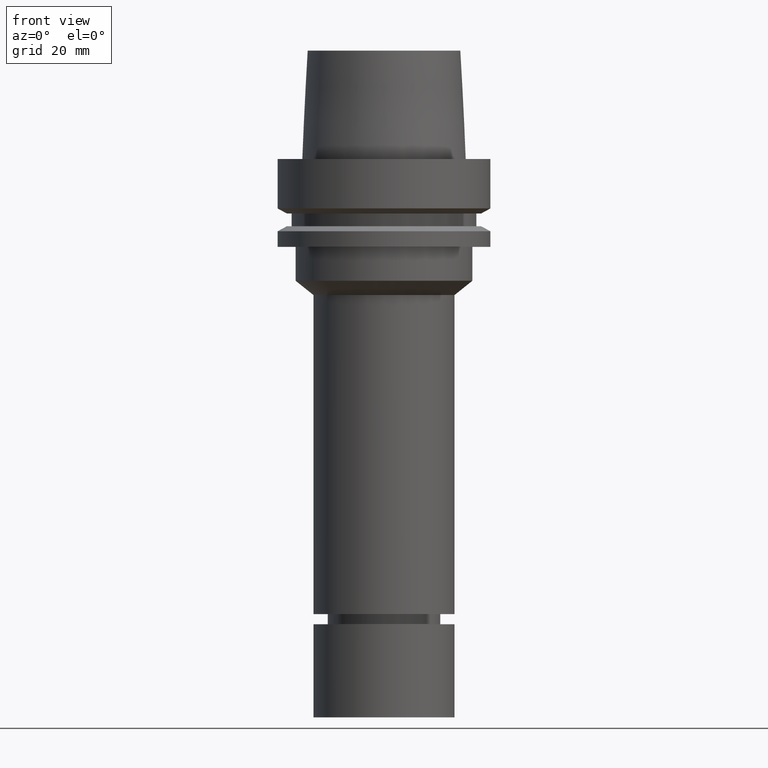
[diagram: clean part render]
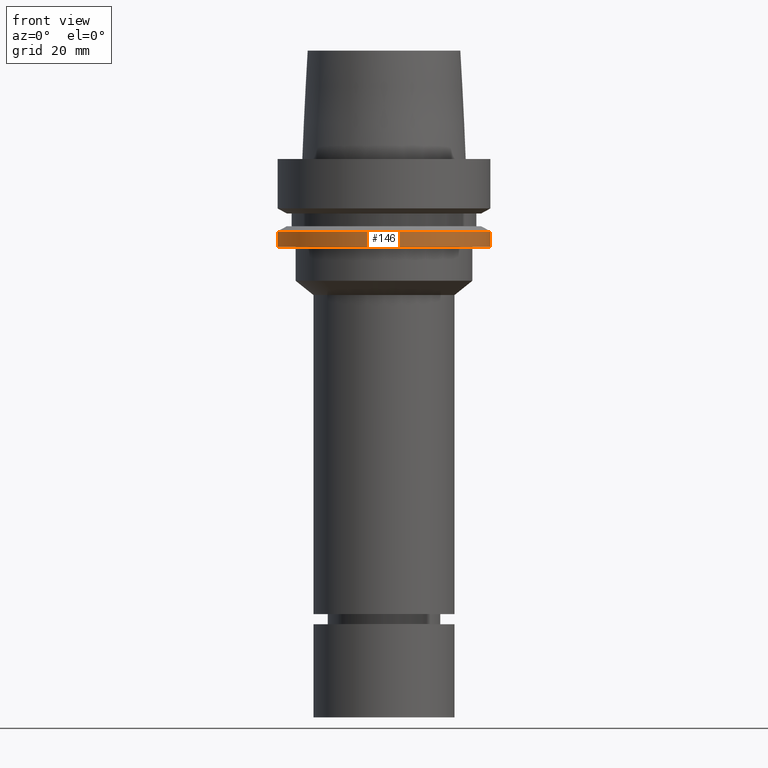
[diagram: same view with one face highlighted and labeled with its STEP entity id]
A machine part, front view. The second image highlights one B-rep face of the part: STEP entity #146.
In plain terms, the highlighted cylindrical surface (bore or boss wall) has radius 31.5 mm, axis along (-0, -0, 1).
Its self-contained STEP definition (entity closure, byte-faithful):
#137=EDGE_CURVE('Unnamed[1]',#304,#304,#305,.T.);
#146=ADVANCED_FACE('Unnamed[1]',(#318,#319),#320,.T.);
#173=EDGE_CURVE('Unnamed[1]',#359,#359,#360,.T.);
#304=VERTEX_POINT('',#518);
#305=CIRCLE('',#519,31.4999999999998);
#318=FACE_BOUND('',#535,.T.);
#319=FACE_BOUND('',#536,.T.);
#320=CYLINDRICAL_SURFACE('',#537,31.4999999999999);
#359=VERTEX_POINT('',#586);
#360=CIRCLE('',#587,31.5);
#518=CARTESIAN_POINT('',(1.59204083889155E-015,31.4999999999998,-25.9999999999999));
#519=AXIS2_PLACEMENT_3D('',#728,#729,#730);
#535=EDGE_LOOP('',(#744));
#536=EDGE_LOOP('',(#745));
#537=AXIS2_PLACEMENT_3D('',#746,#747,#748);
#586=CARTESIAN_POINT('',(1.30899429078397E-015,31.5,-21.3774990747592));
#587=AXIS2_PLACEMENT_3D('',#788,#789,#790);
#728=CARTESIAN_POINT('',(1.59204083889155E-015,3.1840816777831E-015,-25.9999999999999));
#729=DIRECTION('',(-6.12323399573676E-017,-1.22464679914735E-016,1.0));
#730=DIRECTION('',(-1.23259516440783E-032,1.0,1.22464679914735E-016));
#744=ORIENTED_EDGE('',*,*,#173,.F.);
#745=ORIENTED_EDGE('',*,*,#137,.T.);
#746=CARTESIAN_POINT('',(1.45051756483776E-015,2.90103512967552E-015,-23.6887495373796));
#747=DIRECTION('',(-6.12323399573677E-017,-1.22464679914735E-016,1.0));
#748=DIRECTION('',(-1.23259516440783E-032,1.0,1.22464679914735E-016));
#788=CARTESIAN_POINT('',(1.30899429078397E-015,2.61798858156794E-015,-21.3774990747592));
#789=DIRECTION('',(-6.12323399573677E-017,-1.22464679914735E-016,1.0));
#790=DIRECTION('',(-1.23259516440783E-032,1.0,1.22464679914735E-016));